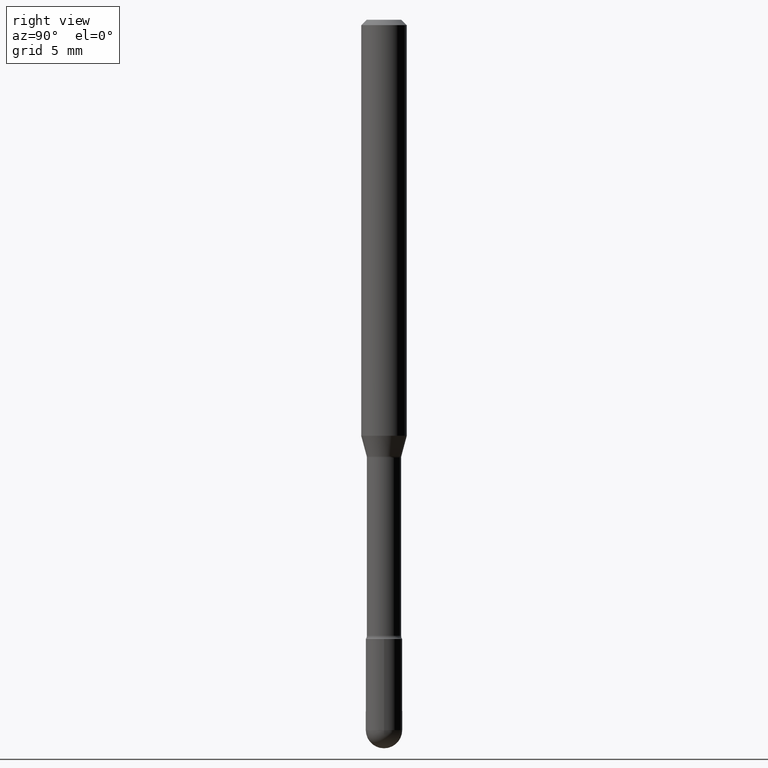
[diagram: clean part render]
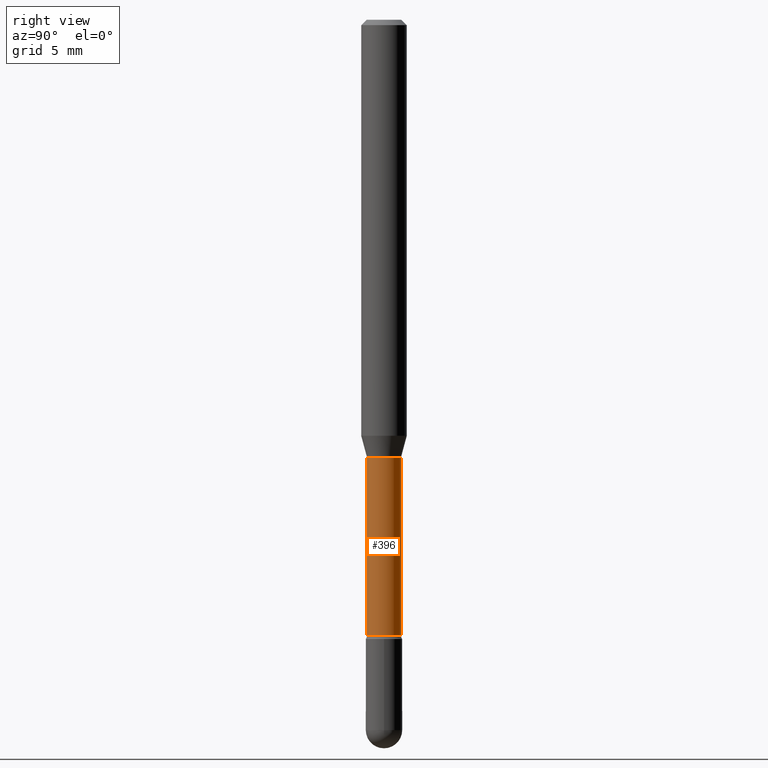
[diagram: same view with one face highlighted and labeled with its STEP entity id]
A machine part, right view. The second image highlights one B-rep face of the part: STEP entity #396.
In plain terms, the highlighted cylindrical surface (edge-blend (fillet) strip) has radius 1.1938 mm, axis along (-0, 0, 1).
Its self-contained STEP definition (entity closure, byte-faithful):
#3 = DIRECTION ( 'NONE',  ( -2.445378392071588483E-29, 3.491610816999798488E-15, 1.000000000000000000 ) ) ;
#24 = VERTEX_POINT ( 'NONE', #266 ) ;
#71 = EDGE_LOOP ( 'NONE', ( #313, #279, #130, #285 ) ) ;
#86 = AXIS2_PLACEMENT_3D ( 'NONE', #398, #389, #95 ) ;
#95 = DIRECTION ( 'NONE',  ( -6.982962677686265133E-15, -1.000000000000000000, 5.812442539711187545E-15 ) ) ;
#100 = CYLINDRICAL_SURFACE ( 'NONE', #164, 0.04700000000000004868 ) ;
#130 = ORIENTED_EDGE ( 'NONE', *, *, #238, .F. ) ;
#132 = CARTESIAN_POINT ( 'NONE',  ( 3.339550858072473347E-16, 0.04700000000000004868, 3.139676904922554404E-16 ) ) ;
#144 = DIRECTION ( 'NONE',  ( -2.445378392071588483E-29, 3.491610816999798093E-15, 1.000000000000000000 ) ) ;
#150 = CARTESIAN_POINT ( 'NONE',  ( 3.446132268436902621E-16, 0.04699999999999417838, -1.691000000000000281 ) ) ;
#154 = CIRCLE ( 'NONE', #86, 0.04700000000000009032 ) ;
#164 = AXIS2_PLACEMENT_3D ( 'NONE', #223, #489, #297 ) ;
#171 = DIRECTION ( 'NONE',  ( -2.445378392071588483E-29, 3.491610816999798488E-15, 1.000000000000000000 ) ) ;
#174 = VECTOR ( 'NONE', #3, 39.37007874015748143 ) ;
#181 = CIRCLE ( 'NONE', #481, 0.04700000000000000705 ) ;
#185 = DIRECTION ( 'NONE',  ( -6.982962677686265922E-15, -1.000000000000000000, 2.906221269855598900E-15 ) ) ;
#223 = CARTESIAN_POINT ( 'NONE',  ( -1.169113584055446105E-44, 1.669184350826100908E-30, 4.780733988912460139E-16 ) ) ;
#238 = EDGE_CURVE ( 'NONE', #457, #335, #181, .T. ) ;
#259 = LINE ( 'NONE', #132, #473 ) ;
#266 = CARTESIAN_POINT ( 'NONE',  ( -3.281992458512137296E-16, -0.04700000000000599532, -1.690999999999999837 ) ) ;
#271 = EDGE_CURVE ( 'NONE', #467, #335, #259, .T. ) ;
#278 = CARTESIAN_POINT ( 'NONE',  ( 3.339550858072887499E-16, 0.04699999999999580208, -1.201974787463810701 ) ) ;
#279 = ORIENTED_EDGE ( 'NONE', *, *, #271, .T. ) ;
#285 = ORIENTED_EDGE ( 'NONE', *, *, #393, .F. ) ;
#297 = DIRECTION ( 'NONE',  ( -6.982962677686265922E-15, -1.000000000000000000, 3.491610816999796910E-15 ) ) ;
#298 = FACE_OUTER_BOUND ( 'NONE', #71, .T. ) ;
#313 = ORIENTED_EDGE ( 'NONE', *, *, #486, .T. ) ;
#335 = VERTEX_POINT ( 'NONE', #278 ) ;
#389 = DIRECTION ( 'NONE',  ( -2.445378392071588483E-29, 3.491610816999798093E-15, 1.000000000000000000 ) ) ;
#393 = EDGE_CURVE ( 'NONE', #24, #457, #433, .T. ) ;
#396 = ADVANCED_FACE ( 'NONE', ( #298 ), #100, .T. ) ;
#398 = CARTESIAN_POINT ( 'NONE',  ( 4.135134860993056477E-29, -5.904313891546658026E-15, -1.691000000000000059 ) ) ;
#433 = LINE ( 'NONE', #527, #174 ) ;
#457 = VERTEX_POINT ( 'NONE', #533 ) ;
#465 = CARTESIAN_POINT ( 'NONE',  ( 2.939283173078842436E-29, -4.196828169669674292E-15, -1.201974787463810479 ) ) ;
#467 = VERTEX_POINT ( 'NONE', #150 ) ;
#473 = VECTOR ( 'NONE', #171, 39.37007874015748143 ) ;
#481 = AXIS2_PLACEMENT_3D ( 'NONE', #465, #144, #185 ) ;
#486 = EDGE_CURVE ( 'NONE', #24, #467, #154, .T. ) ;
#489 = DIRECTION ( 'NONE',  ( -2.445378392071588483E-29, 3.491610816999798093E-15, 1.000000000000000000 ) ) ;
#527 = CARTESIAN_POINT ( 'NONE',  ( -3.281992458512548490E-16, -0.04700000000000004868, 6.421791072902367353E-16 ) ) ;
#533 = CARTESIAN_POINT ( 'NONE',  ( -3.281992458512251188E-16, -0.04700000000000420508, -1.201974787463810479 ) ) ;